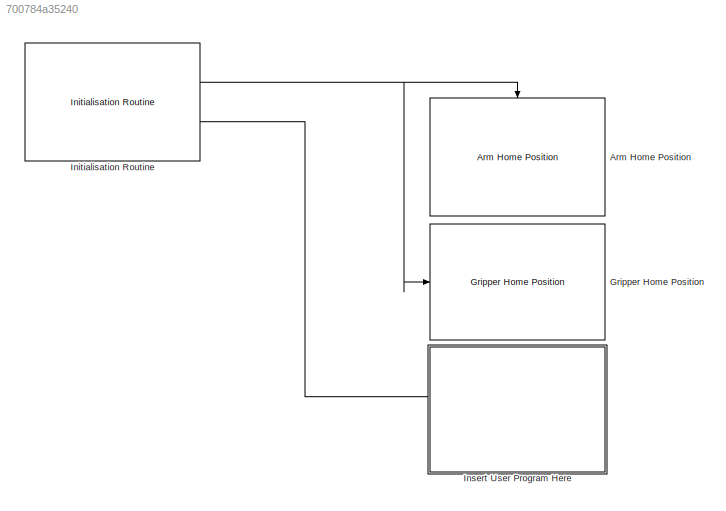
MODEL slx_700784a35240
KIND model
CONFIG AbsTol = auto
CONFIG EnableMultiTasking = on
CONFIG FixedStep = auto
CONFIG MaxStep = auto
CONFIG MinStep = auto
CONFIG RelTol = 1e-3
CONFIG SampleTimeConstraint = Unconstrained
CONFIG SolverName = FixedStepAuto
CONFIG StartTime = 0.0
CONFIG StopTime = inf
BLOCK [Reference] Arm Home Position  REF=Vex_V5_Simulink_Expansion/Derived Blocks/Arm Home Position
  NameLocation = right
  Ports = [0, 0, 1]
  SourceBlock = Vex_V5_Simulink_Expansion/Derived Blocks/Arm Home Position
  SourceProductName = Vex V5 Simulink Expansion
  SourceType = Home Position
BLOCK [Reference] Gripper Home Position  REF=Vex_V5_Simulink_Expansion/Core Blocks/Gripper Home Position
  NameLocation = right
  Ports = [1]
  SourceBlock = Vex_V5_Simulink_Expansion/Core Blocks/Gripper Home Position
  SourceProductName = Vex V5 Simulink Expansion
  SourceType = Gripper Home Position
BLOCK [Reference] Initialisation Routine  REF=Vex_V5_Simulink_Expansion/Core Blocks/Initialisation Routine
  Ports = [0, 2]
  SourceBlock = Vex_V5_Simulink_Expansion/Core Blocks/Initialisation Routine
  SourceProductName = Vex V5 Simulink Expansion
  SourceType = Initialisation Routine
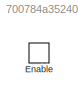
BLOCK [SubSystem] Insert User Program Here
  NameLocation = right
  Ports = [0, 0, 1]
  RequestExecContextInheritance = off
  TreatAsAtomicUnit = on
BLOCK [EnablePort] Insert User Program Here/Enable
  Ports = []
NET Initialisation Routine:1 -> Arm Home Position:enable, Gripper Home Position:1
LINE Initialisation Routine:2 -> Insert User Program Here:enable
note: NET lines group one-source signal fan-out (src -> all destinations, sorted); 1:1 wires keep LINE
